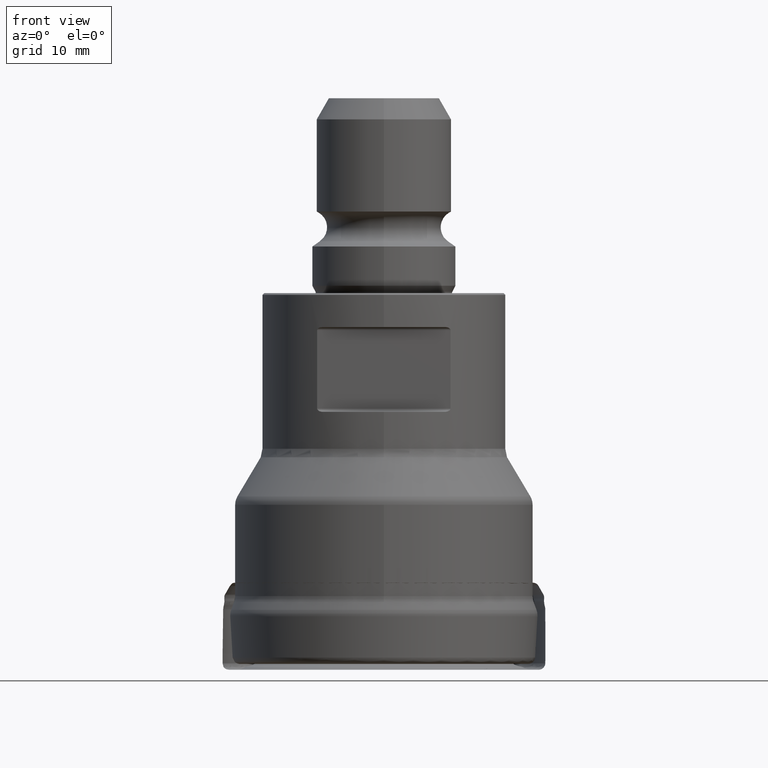
[diagram: clean part render]
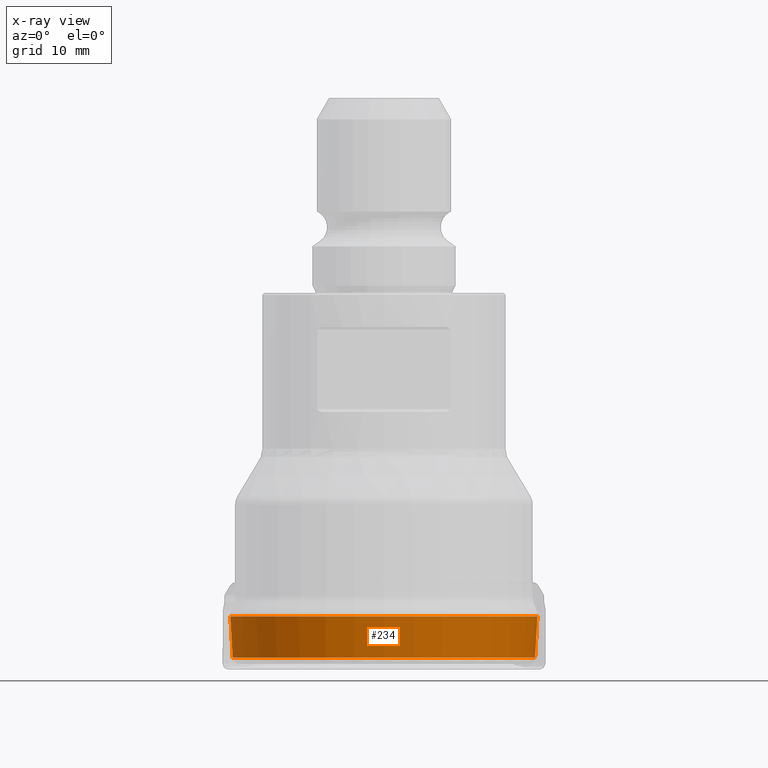
[diagram: x-ray — body ghosted, one internal face saturated and labeled with its STEP entity id]
A machine part, front view, then the same camera in x-ray: the body is ghosted and one INTERNAL B-rep face — a face not visible from any outside direction — is saturated and labeled: STEP entity #234.
In plain terms, the highlighted conical surface has half-angle 3.291 deg.
Its self-contained STEP definition (entity closure, byte-faithful):
#219=CONICAL_SURFACE('',#975,18.1498104899861,3.29106537865034);
#234=ADVANCED_FACE('',(#312,#313),#219,.T.);
#312=FACE_BOUND('',#426,.T.);
#313=FACE_BOUND('',#427,.T.);
#426=EDGE_LOOP('',(#548));
#427=EDGE_LOOP('',(#549));
#548=ORIENTED_EDGE('',*,*,#779,.T.);
#549=ORIENTED_EDGE('',*,*,#780,.T.);
#706=VERTEX_POINT('',#1559);
#707=VERTEX_POINT('',#1561);
#779=EDGE_CURVE('',#706,#706,#858,.T.);
#780=EDGE_CURVE('',#707,#707,#859,.T.);
#858=CIRCLE('',#973,18.1261469032751);
#859=CIRCLE('',#974,17.8481530155178);
#973=AXIS2_PLACEMENT_3D('',#1558,#1082,#1083);
#974=AXIS2_PLACEMENT_3D('',#1560,#1084,#1085);
#975=AXIS2_PLACEMENT_3D('',#1562,#1086,#1087);
#1082=DIRECTION('',(0.,-1.17145536458252E-15,-1.));
#1083=DIRECTION('',(0.,1.,-1.14843390726137E-15));
#1084=DIRECTION('',(0.,1.17145536458252E-15,1.));
#1085=DIRECTION('',(0.,1.,-1.16632133832688E-15));
#1086=DIRECTION('',(0.,1.17145536458252E-15,1.));
#1087=DIRECTION('',(0.,-1.,-9.85990208551179E-16));
#1558=CARTESIAN_POINT('',(0.,7.36667612844934E-15,6.28848213186051));
#1559=CARTESIAN_POINT('',(0.,18.1261469032751,6.28848213186049));
#1560=CARTESIAN_POINT('',(0.,1.70338199470123E-15,1.45407332297998));
#1561=CARTESIAN_POINT('',(0.,17.8481530155178,1.45407332297996));
#1562=CARTESIAN_POINT('',(0.,7.84875094270291E-15,6.7));